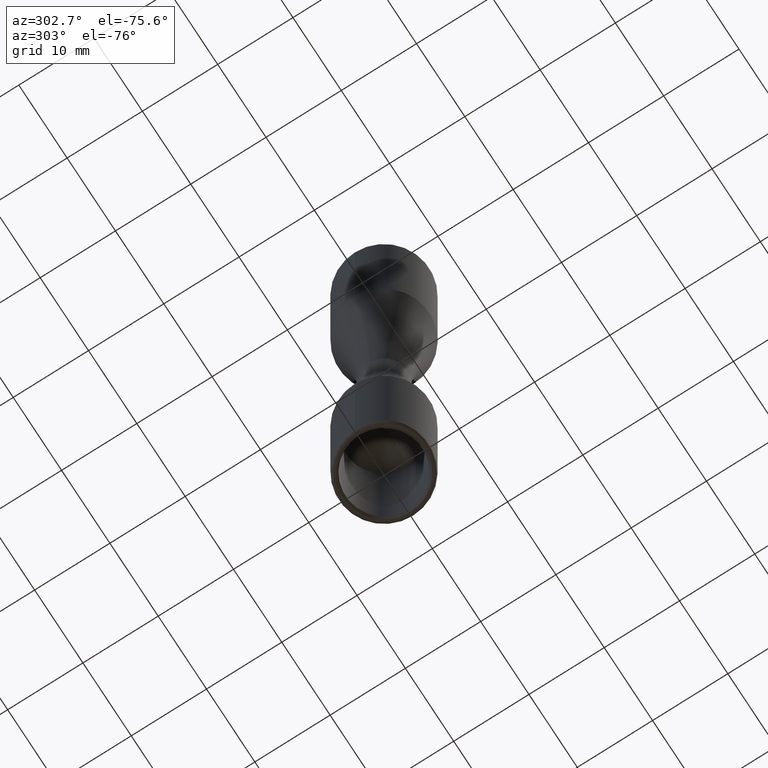
[diagram: clean part render]
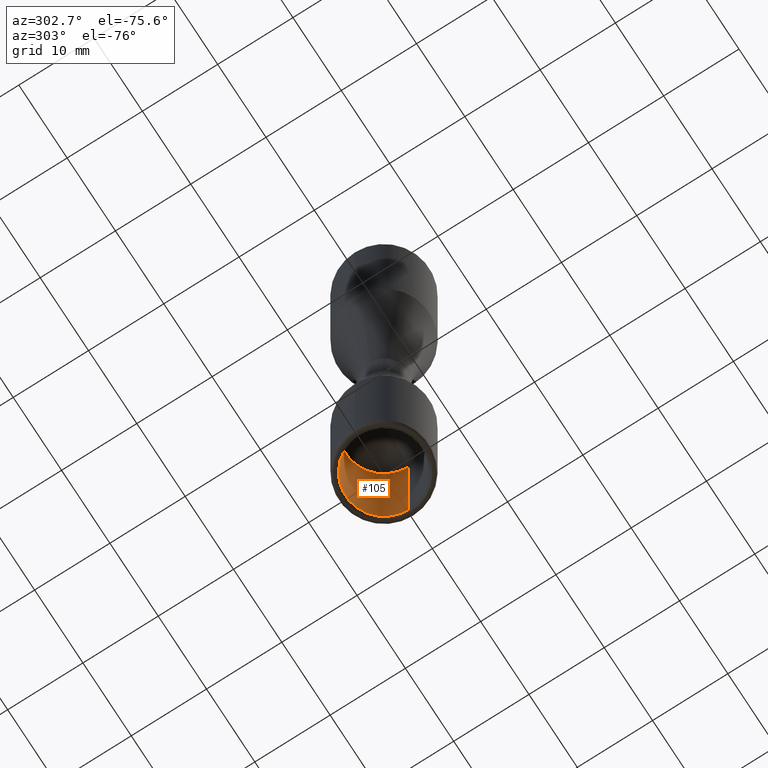
[diagram: same view with one face highlighted and labeled with its STEP entity id]
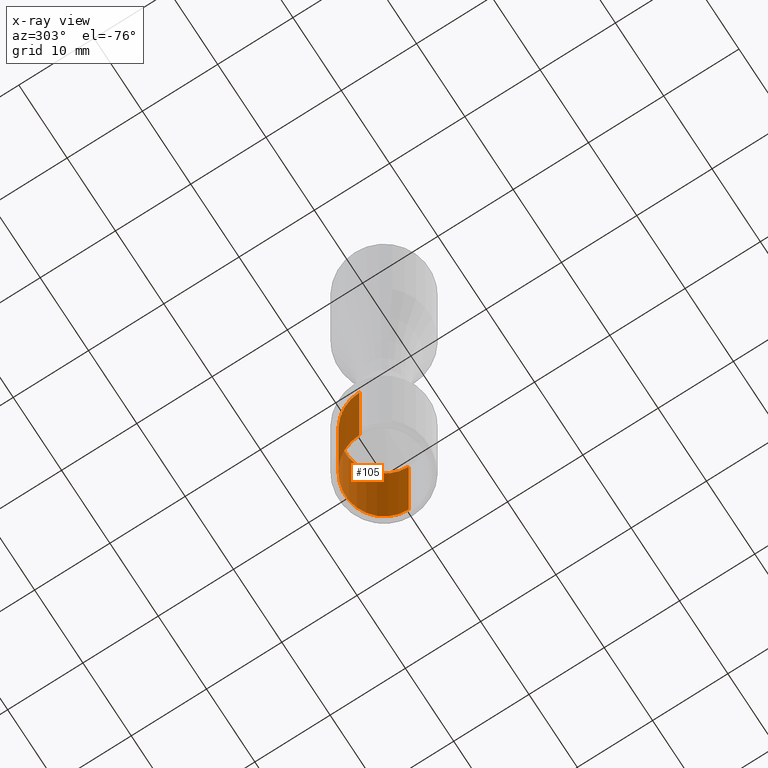
[diagram: x-ray of the same camera — body ghosted, the highlighted face saturated]
A machine part, auxiliary view. The second image highlights one B-rep face of the part: STEP entity #105.
The next image is the same camera in x-ray: the body ghosted, the highlighted face saturated — about 1% of this face is hidden behind the body in this view.
In plain terms, the highlighted cylindrical surface (partial cylindrical patch) has radius 5.1 mm, axis along (-0, -0, -1).
Its self-contained STEP definition (entity closure, byte-faithful):
#105 = ADVANCED_FACE ( 'NONE', ( #8807 ), #9418, .F. ) ;
#465 = CARTESIAN_POINT ( 'NONE',  ( 5.099999999999998757, -3.712238822376867849E-15, -17.43945661757529564 ) ) ;
#524 = VERTEX_POINT ( 'NONE', #5412 ) ;
#538 = DIRECTION ( 'NONE',  ( 0.000000000000000000, 0.000000000000000000, -1.000000000000000000 ) ) ;
#550 = ORIENTED_EDGE ( 'NONE', *, *, #9160, .T. ) ;
#716 = CARTESIAN_POINT ( 'NONE',  ( -5.099999999999998757, -4.336808689942017736E-15, -39.70384577461582865 ) ) ;
#879 = CARTESIAN_POINT ( 'NONE',  ( 5.099999999999998757, -3.712238822376867849E-15, -20.50384577461582580 ) ) ;
#1213 = EDGE_LOOP ( 'NONE', ( #7942, #12688, #7919, #550 ) ) ;
#1463 = DIRECTION ( 'NONE',  ( -0.000000000000000000, -0.000000000000000000, -1.000000000000000000 ) ) ;
#1845 = LINE ( 'NONE', #7525, #7882 ) ;
#1952 = AXIS2_PLACEMENT_3D ( 'NONE', #4738, #4779, #4821 ) ;
#2022 = LINE ( 'NONE', #465, #5587 ) ;
#2153 = VERTEX_POINT ( 'NONE', #9313 ) ;
#2186 = CIRCLE ( 'NONE', #1952, 5.099999999999999645 ) ;
#2347 = DIRECTION ( 'NONE',  ( -1.000000000000000000, 0.000000000000000000, 0.000000000000000000 ) ) ;
#4156 = VERTEX_POINT ( 'NONE', #716 ) ;
#4393 = CARTESIAN_POINT ( 'NONE',  ( 0.000000000000000000, -4.336808689942017736E-15, -39.70384577461582865 ) ) ;
#4738 = CARTESIAN_POINT ( 'NONE',  ( 0.000000000000000000, -4.336808689942017736E-15, -20.50384577461582580 ) ) ;
#4779 = DIRECTION ( 'NONE',  ( -0.000000000000000000, -0.000000000000000000, -1.000000000000000000 ) ) ;
#4821 = DIRECTION ( 'NONE',  ( -1.000000000000000000, 0.000000000000000000, 0.000000000000000000 ) ) ;
#4934 = AXIS2_PLACEMENT_3D ( 'NONE', #4393, #538, #11478 ) ;
#5412 = CARTESIAN_POINT ( 'NONE',  ( 5.099999999999998757, -3.712238822376867849E-15, -39.70384577461582865 ) ) ;
#5587 = VECTOR ( 'NONE', #9375, 1000.000000000000000 ) ;
#7279 = CIRCLE ( 'NONE', #4934, 5.099999999999998757 ) ;
#7525 = CARTESIAN_POINT ( 'NONE',  ( -5.099999999999998757, -4.336808689942017736E-15, -17.43945661757529564 ) ) ;
#7882 = VECTOR ( 'NONE', #1463, 1000.000000000000000 ) ;
#7916 = VERTEX_POINT ( 'NONE', #879 ) ;
#7918 = EDGE_CURVE ( 'NONE', #2153, #7916, #2186, .T. ) ;
#7919 = ORIENTED_EDGE ( 'NONE', *, *, #11966, .T. ) ;
#7942 = ORIENTED_EDGE ( 'NONE', *, *, #8585, .F. ) ;
#8279 = CARTESIAN_POINT ( 'NONE',  ( 0.000000000000000000, -4.336808689942017736E-15, -17.43945661757529564 ) ) ;
#8585 = EDGE_CURVE ( 'NONE', #7916, #524, #2022, .T. ) ;
#8807 = FACE_OUTER_BOUND ( 'NONE', #1213, .T. ) ;
#9160 = EDGE_CURVE ( 'NONE', #4156, #524, #7279, .T. ) ;
#9180 = AXIS2_PLACEMENT_3D ( 'NONE', #8279, #9191, #2347 ) ;
#9191 = DIRECTION ( 'NONE',  ( -0.000000000000000000, -0.000000000000000000, -1.000000000000000000 ) ) ;
#9313 = CARTESIAN_POINT ( 'NONE',  ( -5.099999999999998757, -4.336808689942017736E-15, -20.50384577461582580 ) ) ;
#9375 = DIRECTION ( 'NONE',  ( -0.000000000000000000, -0.000000000000000000, -1.000000000000000000 ) ) ;
#9418 = CYLINDRICAL_SURFACE ( 'NONE', #9180, 5.099999999999998757 ) ;
#11478 = DIRECTION ( 'NONE',  ( -1.000000000000000000, 0.000000000000000000, 0.000000000000000000 ) ) ;
#11966 = EDGE_CURVE ( 'NONE', #2153, #4156, #1845, .T. ) ;
#12688 = ORIENTED_EDGE ( 'NONE', *, *, #7918, .F. ) ;